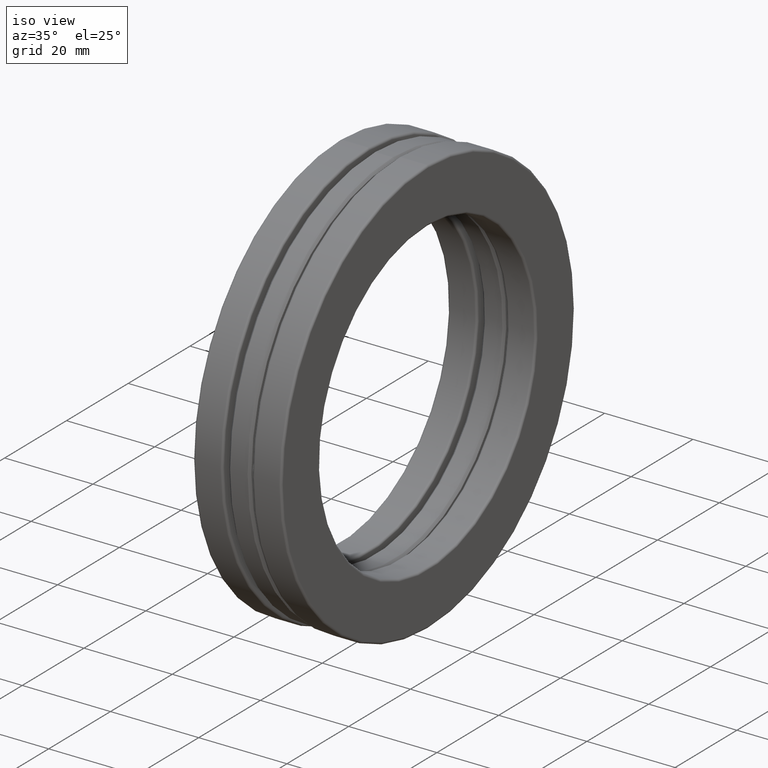
[diagram: clean part render]
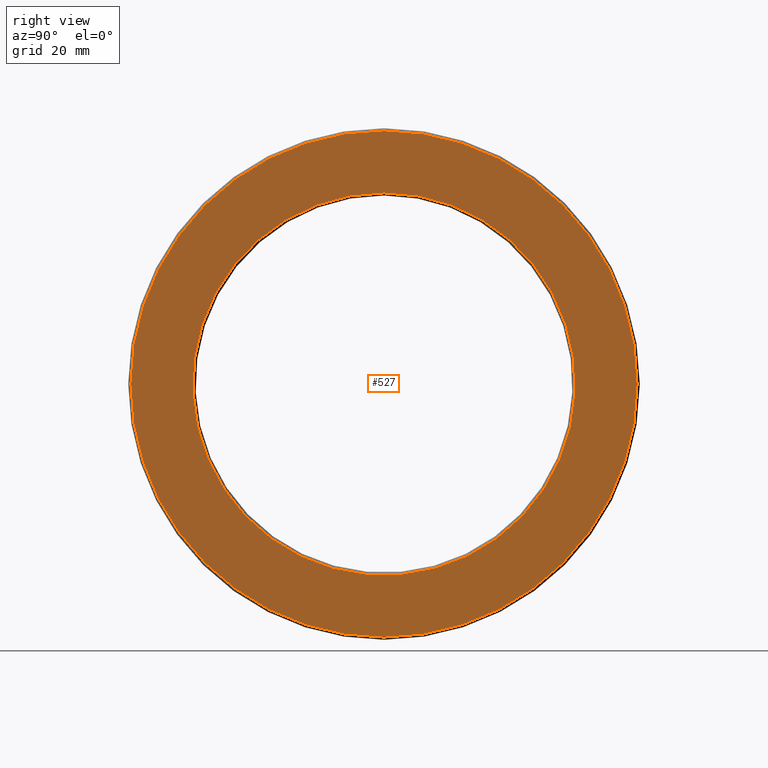
[diagram: tour spotlight — one face highlighted and labeled with its STEP entity id]
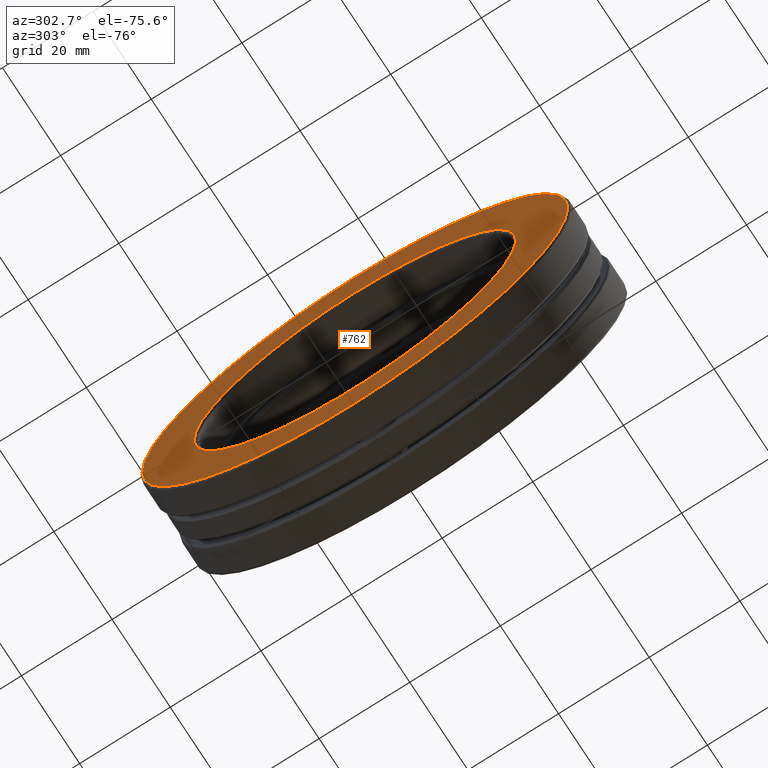
[diagram: tour spotlight — one face highlighted and labeled with its STEP entity id]
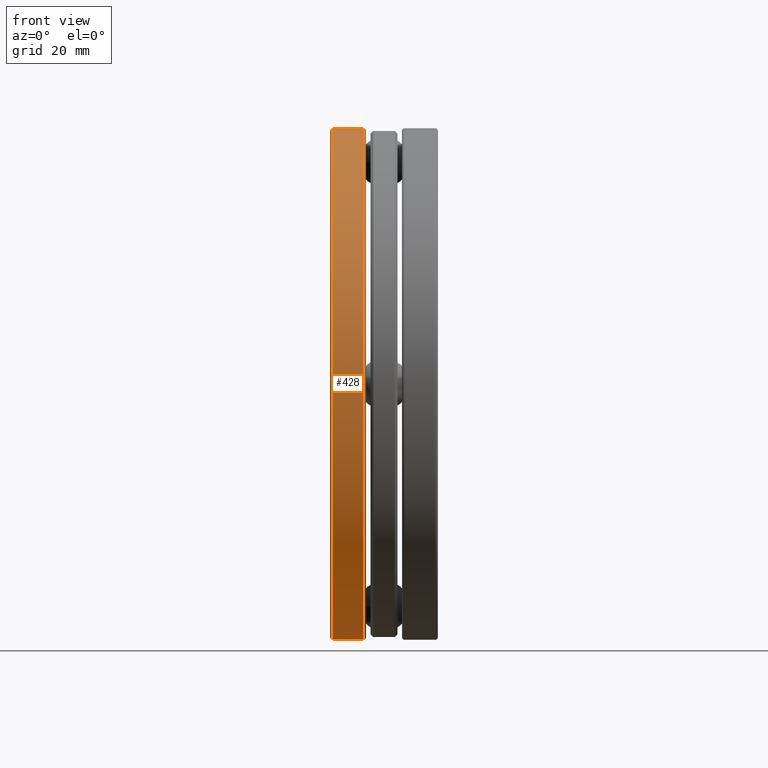
[diagram: tour spotlight — one face highlighted and labeled with its STEP entity id]
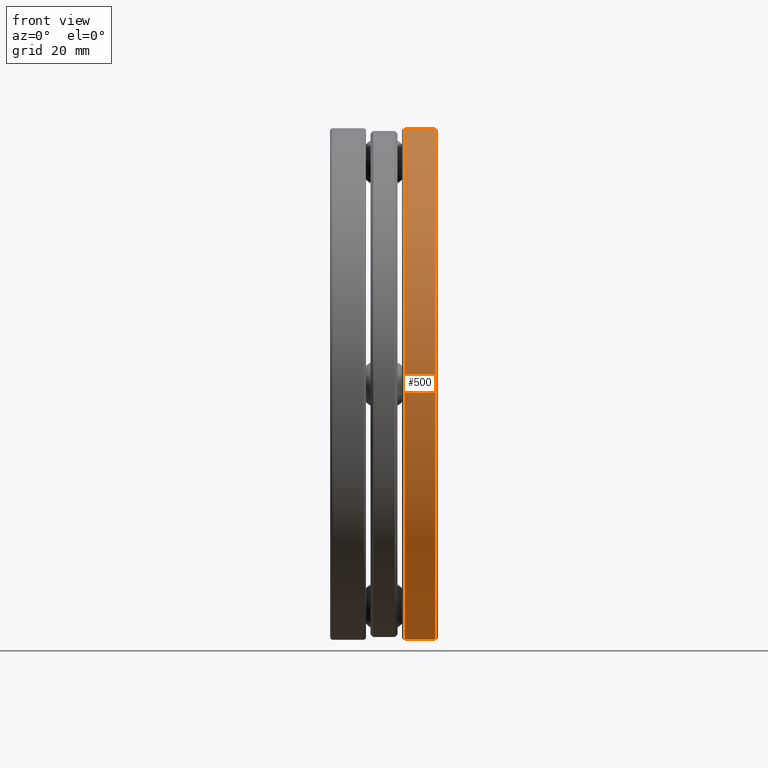
[diagram: tour spotlight — one face highlighted and labeled with its STEP entity id]
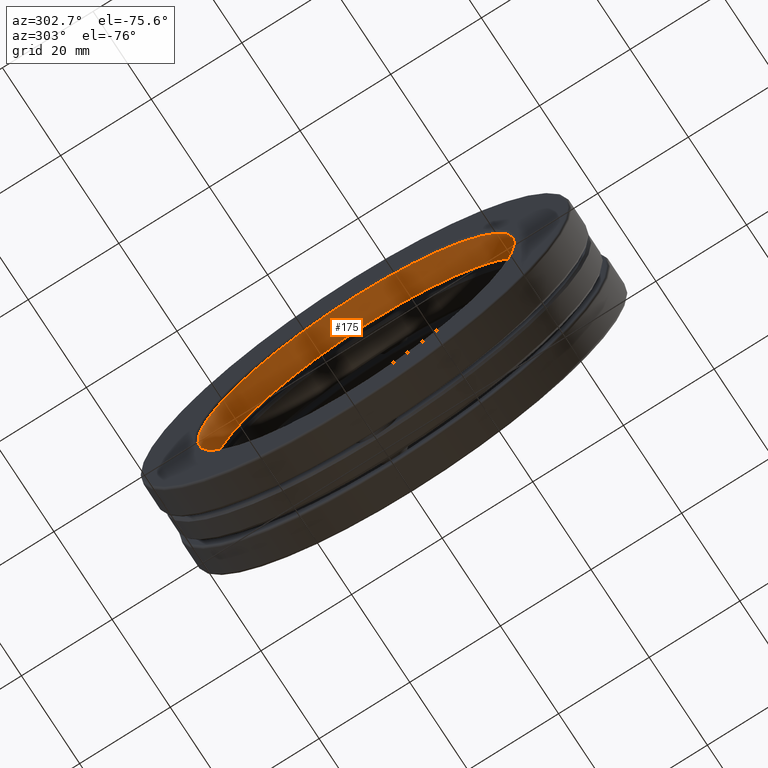
[diagram: tour spotlight — one face highlighted and labeled with its STEP entity id]
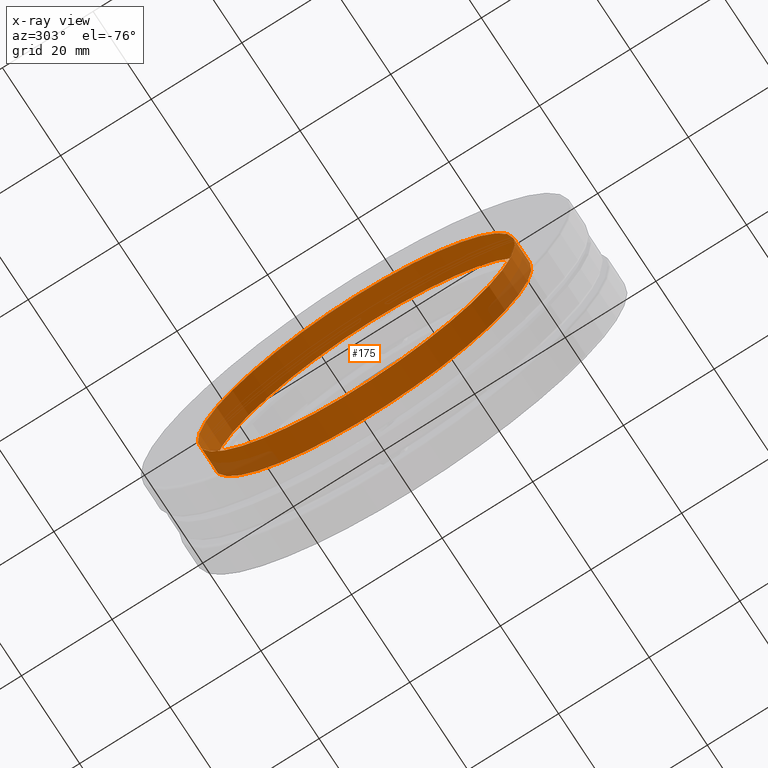
[diagram: x-ray of the same camera — body ghosted, this tour face saturated]
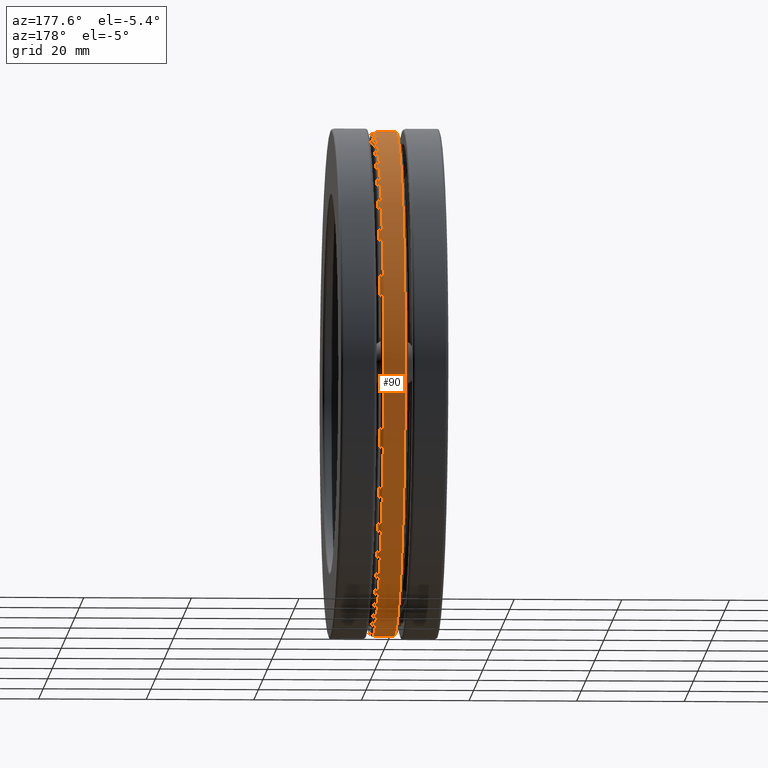
[diagram: tour spotlight — one face highlighted and labeled with its STEP entity id]
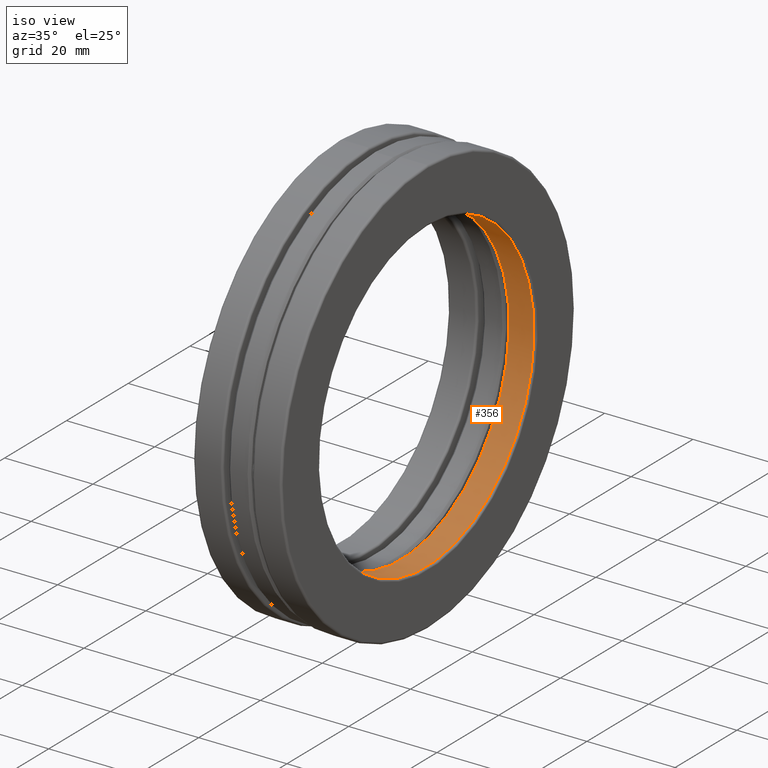
[diagram: tour spotlight — one face highlighted and labeled with its STEP entity id]
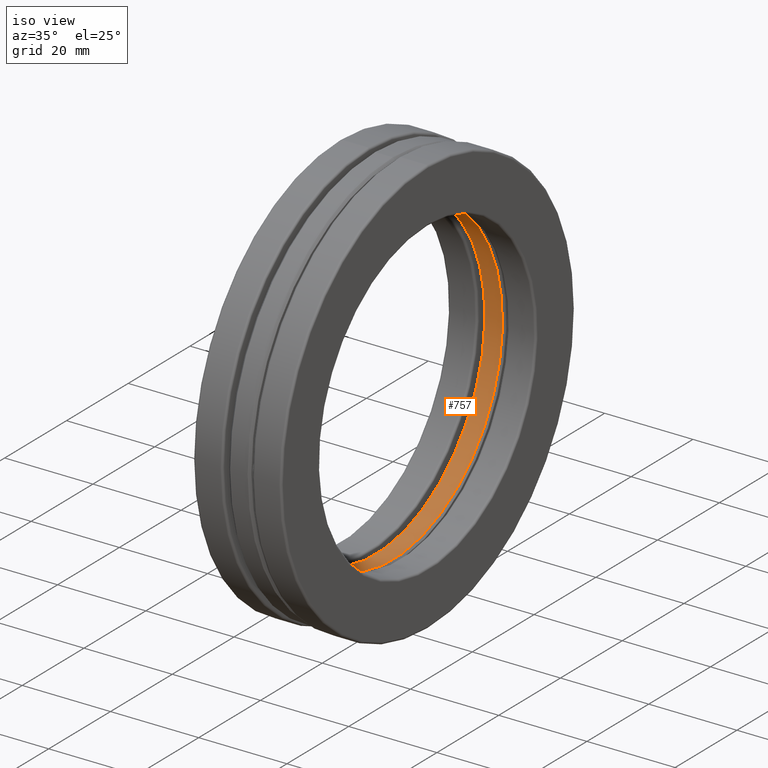
[diagram: tour spotlight — one face highlighted and labeled with its STEP entity id]
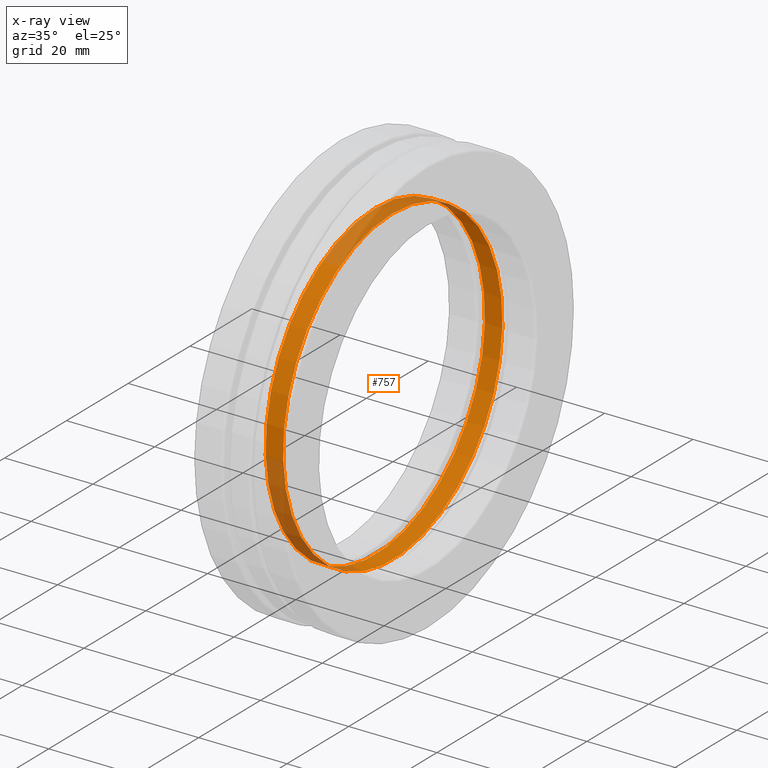
[diagram: x-ray of the same camera — body ghosted, this tour face saturated]
A machine part: a face-by-face anatomy tour. The part has 36 B-rep faces; the first image is the clean iso view, then the 8 largest visible faces are spotlighted one at a time (largest first), each with its STEP entity span.

Face 1 — right view, entity #527. In plain terms, the highlighted planar face has unit normal (1, 0, 0).
Definition (entity closure, byte-faithful):
#18 = VERTEX_POINT ( 'NONE', #251 ) ;
#20 = CIRCLE ( 'NONE', #494, 1.850000000000000300 ) ;
#97 = EDGE_CURVE ( 'NONE', #18, #18, #717, .T. ) ;
#127 = AXIS2_PLACEMENT_3D ( 'NONE', #570, #758, #376 ) ;
#166 = DIRECTION ( 'NONE',  ( 0.0000000000000000000, 0.0000000000000000000, -1.000000000000000000 ) ) ;
#221 = ORIENTED_EDGE ( 'NONE', *, *, #411, .F. ) ;
#251 = CARTESIAN_POINT ( 'NONE',  ( 0.3935000000000001300, 0.0000000000000000000, 1.397999999999999900 ) ) ;
#267 = DIRECTION ( 'NONE',  ( 0.0000000000000000000, 0.0000000000000000000, 1.000000000000000000 ) ) ;
#289 = ORIENTED_EDGE ( 'NONE', *, *, #97, .T. ) ;
#331 = DIRECTION ( 'NONE',  ( -1.000000000000000000, -0.0000000000000000000, -0.0000000000000000000 ) ) ;
#376 = DIRECTION ( 'NONE',  ( 0.0000000000000000000, 0.0000000000000000000, 1.000000000000000000 ) ) ;
#411 = EDGE_CURVE ( 'NONE', #657, #657, #20, .T. ) ;
#425 = DIRECTION ( 'NONE',  ( 1.000000000000000000, 0.0000000000000000000, 0.0000000000000000000 ) ) ;
#433 = PLANE ( 'NONE',  #788 ) ;
#468 = EDGE_LOOP ( 'NONE', ( #289 ) ) ;
#494 = AXIS2_PLACEMENT_3D ( 'NONE', #601, #331, #267 ) ;
#525 = FACE_BOUND ( 'NONE', #468, .T. ) ;
#527 = ADVANCED_FACE ( 'NONE', ( #525, #640 ), #433, .T. ) ;
#570 = CARTESIAN_POINT ( 'NONE',  ( 0.3935000000000001300, 0.0000000000000000000, 0.0000000000000000000 ) ) ;
#592 = CARTESIAN_POINT ( 'NONE',  ( 0.3934999999999999600, 0.0000000000000000000, 1.850000000000000300 ) ) ;
#601 = CARTESIAN_POINT ( 'NONE',  ( 0.3934999999999999600, 0.0000000000000000000, 0.0000000000000000000 ) ) ;
#640 = FACE_OUTER_BOUND ( 'NONE', #751, .T. ) ;
#657 = VERTEX_POINT ( 'NONE', #592 ) ;
#717 = CIRCLE ( 'NONE', #127, 1.397999999999999900 ) ;
#751 = EDGE_LOOP ( 'NONE', ( #221 ) ) ;
#758 = DIRECTION ( 'NONE',  ( -1.000000000000000000, -0.0000000000000000000, -0.0000000000000000000 ) ) ;
#788 = AXIS2_PLACEMENT_3D ( 'NONE', #809, #425, #166 ) ;
#809 = CARTESIAN_POINT ( 'NONE',  ( 0.3935000000000000700, 1.189139585737708400E-016, 0.0000000000000000000 ) ) ;

Face 2 — auxiliary view, entity #762. In plain terms, the highlighted planar face has unit normal (1, 0, 0).
Definition (entity closure, byte-faithful):
#12 = ORIENTED_EDGE ( 'NONE', *, *, #140, .F. ) ;
#76 = ORIENTED_EDGE ( 'NONE', *, *, #680, .T. ) ;
#102 = EDGE_LOOP ( 'NONE', ( #76 ) ) ;
#106 = DIRECTION ( 'NONE',  ( -1.000000000000000000, -0.0000000000000000000, -0.0000000000000000000 ) ) ;
#108 = VERTEX_POINT ( 'NONE', #128 ) ;
#121 = PLANE ( 'NONE',  #135 ) ;
#128 = CARTESIAN_POINT ( 'NONE',  ( -0.3935000000000000700, 0.0000000000000000000, 1.850000000000000300 ) ) ;
#135 = AXIS2_PLACEMENT_3D ( 'NONE', #638, #368, #579 ) ;
#140 = EDGE_CURVE ( 'NONE', #141, #141, #336, .T. ) ;
#141 = VERTEX_POINT ( 'NONE', #196 ) ;
#196 = CARTESIAN_POINT ( 'NONE',  ( -0.3934999999999999600, 0.0000000000000000000, 1.397999999999999700 ) ) ;
#210 = CIRCLE ( 'NONE', #403, 1.850000000000000300 ) ;
#217 = FACE_OUTER_BOUND ( 'NONE', #102, .T. ) ;
#302 = DIRECTION ( 'NONE',  ( 0.0000000000000000000, 0.0000000000000000000, 1.000000000000000000 ) ) ;
#336 = CIRCLE ( 'NONE', #586, 1.397999999999999700 ) ;
#366 = CARTESIAN_POINT ( 'NONE',  ( -0.3934999999999999600, 0.0000000000000000000, 0.0000000000000000000 ) ) ;
#368 = DIRECTION ( 'NONE',  ( 1.000000000000000000, 0.0000000000000000000, 0.0000000000000000000 ) ) ;
#382 = FACE_BOUND ( 'NONE', #791, .T. ) ;
#403 = AXIS2_PLACEMENT_3D ( 'NONE', #690, #695, #750 ) ;
#579 = DIRECTION ( 'NONE',  ( 0.0000000000000000000, 0.0000000000000000000, -1.000000000000000000 ) ) ;
#586 = AXIS2_PLACEMENT_3D ( 'NONE', #366, #106, #302 ) ;
#638 = CARTESIAN_POINT ( 'NONE',  ( -0.3935000000000000700, -5.945697928688527000E-017, 0.0000000000000000000 ) ) ;
#680 = EDGE_CURVE ( 'NONE', #108, #108, #210, .T. ) ;
#690 = CARTESIAN_POINT ( 'NONE',  ( -0.3935000000000000700, 0.0000000000000000000, 0.0000000000000000000 ) ) ;
#695 = DIRECTION ( 'NONE',  ( -1.000000000000000000, -0.0000000000000000000, -0.0000000000000000000 ) ) ;
#750 = DIRECTION ( 'NONE',  ( 0.0000000000000000000, 0.0000000000000000000, 1.000000000000000000 ) ) ;
#762 = ADVANCED_FACE ( 'NONE', ( #382, #217 ), #121, .F. ) ;
#791 = EDGE_LOOP ( 'NONE', ( #12 ) ) ;

Face 3 — front view, entity #428. In plain terms, the highlighted cylindrical surface (bore or boss wall) has radius 47.498 mm, axis along (-1, -0, -0).
Definition (entity closure, byte-faithful):
#19 = DIRECTION ( 'NONE',  ( -1.000000000000000000, -0.0000000000000000000, -0.0000000000000000000 ) ) ;
#32 = EDGE_LOOP ( 'NONE', ( #599 ) ) ;
#40 = DIRECTION ( 'NONE',  ( 0.0000000000000000000, 0.0000000000000000000, 1.000000000000000000 ) ) ;
#67 = EDGE_LOOP ( 'NONE', ( #740 ) ) ;
#104 = CARTESIAN_POINT ( 'NONE',  ( -0.1511692899999999600, 0.0000000000000000000, 0.0000000000000000000 ) ) ;
#120 = FACE_OUTER_BOUND ( 'NONE', #32, .T. ) ;
#181 = EDGE_CURVE ( 'NONE', #237, #237, #564, .T. ) ;
#184 = DIRECTION ( 'NONE',  ( -1.000000000000000000, -0.0000000000000000000, -0.0000000000000000000 ) ) ;
#201 = CARTESIAN_POINT ( 'NONE',  ( -0.1511692899999999600, 0.0000000000000000000, 1.870000000000000100 ) ) ;
#232 = DIRECTION ( 'NONE',  ( -1.000000000000000000, -0.0000000000000000000, -0.0000000000000000000 ) ) ;
#237 = VERTEX_POINT ( 'NONE', #394 ) ;
#307 = VERTEX_POINT ( 'NONE', #201 ) ;
#341 = CARTESIAN_POINT ( 'NONE',  ( 0.0000000000000000000, 0.0000000000000000000, 0.0000000000000000000 ) ) ;
#373 = FACE_OUTER_BOUND ( 'NONE', #67, .T. ) ;
#394 = CARTESIAN_POINT ( 'NONE',  ( -0.3735000000000000500, 0.0000000000000000000, 1.870000000000000100 ) ) ;
#404 = DIRECTION ( 'NONE',  ( 0.0000000000000000000, 0.0000000000000000000, 1.000000000000000000 ) ) ;
#428 = ADVANCED_FACE ( 'NONE', ( #120, #373 ), #785, .T. ) ;
#465 = CARTESIAN_POINT ( 'NONE',  ( -0.3735000000000000500, 0.0000000000000000000, 0.0000000000000000000 ) ) ;
#483 = AXIS2_PLACEMENT_3D ( 'NONE', #465, #184, #585 ) ;
#490 = AXIS2_PLACEMENT_3D ( 'NONE', #341, #19, #404 ) ;
#564 = CIRCLE ( 'NONE', #483, 1.870000000000000100 ) ;
#569 = EDGE_CURVE ( 'NONE', #307, #307, #694, .T. ) ;
#585 = DIRECTION ( 'NONE',  ( 0.0000000000000000000, 0.0000000000000000000, 1.000000000000000000 ) ) ;
#599 = ORIENTED_EDGE ( 'NONE', *, *, #181, .F. ) ;
#624 = AXIS2_PLACEMENT_3D ( 'NONE', #104, #232, #40 ) ;
#694 = CIRCLE ( 'NONE', #624, 1.870000000000000100 ) ;
#740 = ORIENTED_EDGE ( 'NONE', *, *, #569, .T. ) ;
#785 = CYLINDRICAL_SURFACE ( 'NONE', #490, 1.870000000000000100 ) ;

Face 4 — front view, entity #500. In plain terms, the highlighted cylindrical surface (bore or boss wall) has radius 47.498 mm, axis along (-1, -0, -0).
Definition (entity closure, byte-faithful):
#8 = CYLINDRICAL_SURFACE ( 'NONE', #291, 1.870000000000000300 ) ;
#16 = CARTESIAN_POINT ( 'NONE',  ( 0.3735000000000006600, 0.0000000000000000000, 0.0000000000000000000 ) ) ;
#44 = VERTEX_POINT ( 'NONE', #69 ) ;
#69 = CARTESIAN_POINT ( 'NONE',  ( 0.1511692900000004800, 0.0000000000000000000, 1.870000000000000300 ) ) ;
#92 = EDGE_CURVE ( 'NONE', #44, #44, #730, .T. ) ;
#110 = DIRECTION ( 'NONE',  ( 0.0000000000000000000, 0.0000000000000000000, 1.000000000000000000 ) ) ;
#132 = CARTESIAN_POINT ( 'NONE',  ( 0.3735000000000006600, 0.0000000000000000000, 1.870000000000000300 ) ) ;
#192 = DIRECTION ( 'NONE',  ( 0.0000000000000000000, 0.0000000000000000000, 1.000000000000000000 ) ) ;
#213 = EDGE_CURVE ( 'NONE', #271, #271, #584, .T. ) ;
#271 = VERTEX_POINT ( 'NONE', #132 ) ;
#291 = AXIS2_PLACEMENT_3D ( 'NONE', #561, #562, #629 ) ;
#292 = AXIS2_PLACEMENT_3D ( 'NONE', #574, #686, #110 ) ;
#325 = EDGE_LOOP ( 'NONE', ( #643 ) ) ;
#469 = AXIS2_PLACEMENT_3D ( 'NONE', #16, #645, #192 ) ;
#500 = ADVANCED_FACE ( 'NONE', ( #764, #803 ), #8, .T. ) ;
#561 = CARTESIAN_POINT ( 'NONE',  ( 0.0000000000000000000, 0.0000000000000000000, 0.0000000000000000000 ) ) ;
#562 = DIRECTION ( 'NONE',  ( -1.000000000000000000, -0.0000000000000000000, -0.0000000000000000000 ) ) ;
#574 = CARTESIAN_POINT ( 'NONE',  ( 0.1511692900000004800, 0.0000000000000000000, 0.0000000000000000000 ) ) ;
#578 = EDGE_LOOP ( 'NONE', ( #626 ) ) ;
#584 = CIRCLE ( 'NONE', #469, 1.870000000000000300 ) ;
#626 = ORIENTED_EDGE ( 'NONE', *, *, #92, .F. ) ;
#629 = DIRECTION ( 'NONE',  ( 0.0000000000000000000, 0.0000000000000000000, 1.000000000000000000 ) ) ;
#643 = ORIENTED_EDGE ( 'NONE', *, *, #213, .T. ) ;
#645 = DIRECTION ( 'NONE',  ( -1.000000000000000000, -0.0000000000000000000, -0.0000000000000000000 ) ) ;
#686 = DIRECTION ( 'NONE',  ( -1.000000000000000000, -0.0000000000000000000, -0.0000000000000000000 ) ) ;
#730 = CIRCLE ( 'NONE', #292, 1.870000000000000300 ) ;
#764 = FACE_OUTER_BOUND ( 'NONE', #578, .T. ) ;
#803 = FACE_OUTER_BOUND ( 'NONE', #325, .T. ) ;

Face 5 — auxiliary view, entity #175. An x-ray twin of the same camera follows (body ghosted, this face saturated) — the face is partly hidden behind the body. In plain terms, the highlighted cylindrical surface (bore or boss wall) has radius 35.0012 mm, axis along (-1, -0, -0).
Definition (entity closure, byte-faithful):
#27 = CIRCLE ( 'NONE', #33, 1.377999999999999900 ) ;
#33 = AXIS2_PLACEMENT_3D ( 'NONE', #268, #470, #343 ) ;
#39 = EDGE_LOOP ( 'NONE', ( #164 ) ) ;
#65 = FACE_OUTER_BOUND ( 'NONE', #39, .T. ) ;
#86 = EDGE_CURVE ( 'NONE', #262, #262, #795, .T. ) ;
#113 = DIRECTION ( 'NONE',  ( -1.000000000000000000, -0.0000000000000000000, -0.0000000000000000000 ) ) ;
#164 = ORIENTED_EDGE ( 'NONE', *, *, #345, .T. ) ;
#175 = ADVANCED_FACE ( 'NONE', ( #65, #805 ), #397, .F. ) ;
#212 = EDGE_LOOP ( 'NONE', ( #326 ) ) ;
#262 = VERTEX_POINT ( 'NONE', #652 ) ;
#268 = CARTESIAN_POINT ( 'NONE',  ( -0.3734999999999999400, 0.0000000000000000000, 0.0000000000000000000 ) ) ;
#295 = CARTESIAN_POINT ( 'NONE',  ( -0.1511692899999998200, 0.0000000000000000000, 0.0000000000000000000 ) ) ;
#298 = DIRECTION ( 'NONE',  ( -1.000000000000000000, -0.0000000000000000000, -0.0000000000000000000 ) ) ;
#311 = DIRECTION ( 'NONE',  ( 0.0000000000000000000, 0.0000000000000000000, 1.000000000000000000 ) ) ;
#326 = ORIENTED_EDGE ( 'NONE', *, *, #86, .F. ) ;
#343 = DIRECTION ( 'NONE',  ( 0.0000000000000000000, 0.0000000000000000000, 1.000000000000000000 ) ) ;
#345 = EDGE_CURVE ( 'NONE', #512, #512, #27, .T. ) ;
#397 = CYLINDRICAL_SURFACE ( 'NONE', #664, 1.377999999999999900 ) ;
#470 = DIRECTION ( 'NONE',  ( -1.000000000000000000, -0.0000000000000000000, -0.0000000000000000000 ) ) ;
#512 = VERTEX_POINT ( 'NONE', #528 ) ;
#528 = CARTESIAN_POINT ( 'NONE',  ( -0.3734999999999999400, 0.0000000000000000000, 1.377999999999999900 ) ) ;
#593 = DIRECTION ( 'NONE',  ( 0.0000000000000000000, 0.0000000000000000000, 1.000000000000000000 ) ) ;
#652 = CARTESIAN_POINT ( 'NONE',  ( -0.1511692899999998200, 0.0000000000000000000, 1.377999999999999900 ) ) ;
#664 = AXIS2_PLACEMENT_3D ( 'NONE', #817, #113, #593 ) ;
#729 = AXIS2_PLACEMENT_3D ( 'NONE', #295, #298, #311 ) ;
#795 = CIRCLE ( 'NONE', #729, 1.377999999999999900 ) ;
#805 = FACE_OUTER_BOUND ( 'NONE', #212, .T. ) ;
#817 = CARTESIAN_POINT ( 'NONE',  ( 0.0000000000000000000, 0.0000000000000000000, 0.0000000000000000000 ) ) ;

Face 6 — auxiliary view, entity #90. In plain terms, the highlighted cylindrical surface (bore or boss wall) has radius 46.99 mm, axis along (-1, -0, -0).
Definition (entity closure, byte-faithful):
#7 = EDGE_CURVE ( 'NONE', #555, #555, #88, .T. ) ;
#48 = DIRECTION ( 'NONE',  ( -1.000000000000000000, -0.0000000000000000000, -0.0000000000000000000 ) ) ;
#57 = CARTESIAN_POINT ( 'NONE',  ( 0.0000000000000000000, 0.0000000000000000000, 0.0000000000000000000 ) ) ;
#58 = AXIS2_PLACEMENT_3D ( 'NONE', #259, #649, #702 ) ;
#88 = CIRCLE ( 'NONE', #793, 1.849999999999999600 ) ;
#90 = ADVANCED_FACE ( 'NONE', ( #767, #607 ), #386, .T. ) ;
#156 = DIRECTION ( 'NONE',  ( 0.0000000000000000000, 0.0000000000000000000, 1.000000000000000000 ) ) ;
#163 = EDGE_LOOP ( 'NONE', ( #618 ) ) ;
#173 = ORIENTED_EDGE ( 'NONE', *, *, #274, .T. ) ;
#225 = VERTEX_POINT ( 'NONE', #716 ) ;
#241 = CARTESIAN_POINT ( 'NONE',  ( -0.07837499999999998600, 0.0000000000000000000, 1.849999999999999600 ) ) ;
#259 = CARTESIAN_POINT ( 'NONE',  ( 0.07837499999999998600, 0.0000000000000000000, 0.0000000000000000000 ) ) ;
#274 = EDGE_CURVE ( 'NONE', #225, #225, #666, .T. ) ;
#386 = CYLINDRICAL_SURFACE ( 'NONE', #549, 1.849999999999999600 ) ;
#431 = CARTESIAN_POINT ( 'NONE',  ( -0.07837499999999998600, 0.0000000000000000000, 0.0000000000000000000 ) ) ;
#511 = DIRECTION ( 'NONE',  ( -1.000000000000000000, -0.0000000000000000000, -0.0000000000000000000 ) ) ;
#549 = AXIS2_PLACEMENT_3D ( 'NONE', #57, #511, #636 ) ;
#555 = VERTEX_POINT ( 'NONE', #241 ) ;
#607 = FACE_OUTER_BOUND ( 'NONE', #163, .T. ) ;
#618 = ORIENTED_EDGE ( 'NONE', *, *, #7, .F. ) ;
#636 = DIRECTION ( 'NONE',  ( 0.0000000000000000000, 0.0000000000000000000, 1.000000000000000000 ) ) ;
#649 = DIRECTION ( 'NONE',  ( -1.000000000000000000, -0.0000000000000000000, -0.0000000000000000000 ) ) ;
#666 = CIRCLE ( 'NONE', #58, 1.849999999999999600 ) ;
#667 = EDGE_LOOP ( 'NONE', ( #173 ) ) ;
#702 = DIRECTION ( 'NONE',  ( 0.0000000000000000000, 0.0000000000000000000, 1.000000000000000000 ) ) ;
#716 = CARTESIAN_POINT ( 'NONE',  ( 0.07837499999999998600, 0.0000000000000000000, 1.849999999999999600 ) ) ;
#767 = FACE_OUTER_BOUND ( 'NONE', #667, .T. ) ;
#793 = AXIS2_PLACEMENT_3D ( 'NONE', #431, #48, #156 ) ;

Face 7 — iso view, entity #356. In plain terms, the highlighted cylindrical surface (bore or boss wall) has radius 35.0012 mm, axis along (-1, -0, -0).
Definition (entity closure, byte-faithful):
#31 = EDGE_LOOP ( 'NONE', ( #47 ) ) ;
#47 = ORIENTED_EDGE ( 'NONE', *, *, #282, .F. ) ;
#61 = EDGE_CURVE ( 'NONE', #621, #621, #400, .T. ) ;
#116 = DIRECTION ( 'NONE',  ( -1.000000000000000000, -0.0000000000000000000, -0.0000000000000000000 ) ) ;
#129 = CYLINDRICAL_SURFACE ( 'NONE', #671, 1.377999999999999900 ) ;
#183 = CARTESIAN_POINT ( 'NONE',  ( 0.1511692900000005700, 0.0000000000000000000, 1.377999999999999900 ) ) ;
#243 = ORIENTED_EDGE ( 'NONE', *, *, #61, .T. ) ;
#282 = EDGE_CURVE ( 'NONE', #451, #451, #350, .T. ) ;
#321 = DIRECTION ( 'NONE',  ( -1.000000000000000000, -0.0000000000000000000, -0.0000000000000000000 ) ) ;
#323 = CARTESIAN_POINT ( 'NONE',  ( 0.3735000000000007200, 0.0000000000000000000, 1.377999999999999900 ) ) ;
#340 = EDGE_LOOP ( 'NONE', ( #243 ) ) ;
#350 = CIRCLE ( 'NONE', #508, 1.377999999999999900 ) ;
#356 = ADVANCED_FACE ( 'NONE', ( #705, #453 ), #129, .F. ) ;
#396 = CARTESIAN_POINT ( 'NONE',  ( 0.3735000000000007200, 0.0000000000000000000, 0.0000000000000000000 ) ) ;
#400 = CIRCLE ( 'NONE', #706, 1.377999999999999900 ) ;
#447 = DIRECTION ( 'NONE',  ( 0.0000000000000000000, 0.0000000000000000000, 1.000000000000000000 ) ) ;
#451 = VERTEX_POINT ( 'NONE', #323 ) ;
#453 = FACE_OUTER_BOUND ( 'NONE', #31, .T. ) ;
#508 = AXIS2_PLACEMENT_3D ( 'NONE', #396, #321, #530 ) ;
#526 = DIRECTION ( 'NONE',  ( -1.000000000000000000, -0.0000000000000000000, -0.0000000000000000000 ) ) ;
#530 = DIRECTION ( 'NONE',  ( 0.0000000000000000000, 0.0000000000000000000, 1.000000000000000000 ) ) ;
#621 = VERTEX_POINT ( 'NONE', #183 ) ;
#671 = AXIS2_PLACEMENT_3D ( 'NONE', #712, #526, #724 ) ;
#705 = FACE_OUTER_BOUND ( 'NONE', #340, .T. ) ;
#706 = AXIS2_PLACEMENT_3D ( 'NONE', #761, #116, #447 ) ;
#712 = CARTESIAN_POINT ( 'NONE',  ( 0.0000000000000000000, 0.0000000000000000000, 0.0000000000000000000 ) ) ;
#724 = DIRECTION ( 'NONE',  ( 0.0000000000000000000, 0.0000000000000000000, 1.000000000000000000 ) ) ;
#761 = CARTESIAN_POINT ( 'NONE',  ( 0.1511692900000005700, 0.0000000000000000000, 0.0000000000000000000 ) ) ;

Face 8 — iso view, entity #757. An x-ray twin of the same camera follows (body ghosted, this face saturated) — the face is partly hidden behind the body. In plain terms, the highlighted cylindrical surface (bore or boss wall) has radius 35.5092 mm, axis along (-1, -0, -0).
Definition (entity closure, byte-faithful):
#54 = CYLINDRICAL_SURFACE ( 'NONE', #523, 1.397999999999999900 ) ;
#83 = AXIS2_PLACEMENT_3D ( 'NONE', #782, #596, #480 ) ;
#109 = DIRECTION ( 'NONE',  ( 0.0000000000000000000, 0.0000000000000000000, 1.000000000000000000 ) ) ;
#138 = FACE_OUTER_BOUND ( 'NONE', #377, .T. ) ;
#176 = DIRECTION ( 'NONE',  ( -1.000000000000000000, -0.0000000000000000000, -0.0000000000000000000 ) ) ;
#179 = CIRCLE ( 'NONE', #83, 1.397999999999999900 ) ;
#198 = CARTESIAN_POINT ( 'NONE',  ( -0.07837499999999998600, 0.0000000000000000000, 1.397999999999999900 ) ) ;
#233 = AXIS2_PLACEMENT_3D ( 'NONE', #820, #176, #445 ) ;
#362 = ORIENTED_EDGE ( 'NONE', *, *, #391, .F. ) ;
#377 = EDGE_LOOP ( 'NONE', ( #362 ) ) ;
#391 = EDGE_CURVE ( 'NONE', #414, #414, #179, .T. ) ;
#393 = CARTESIAN_POINT ( 'NONE',  ( 0.07837500000000002800, 0.0000000000000000000, 1.397999999999999900 ) ) ;
#395 = FACE_OUTER_BOUND ( 'NONE', #544, .T. ) ;
#414 = VERTEX_POINT ( 'NONE', #393 ) ;
#445 = DIRECTION ( 'NONE',  ( 0.0000000000000000000, 0.0000000000000000000, 1.000000000000000000 ) ) ;
#448 = CIRCLE ( 'NONE', #233, 1.397999999999999900 ) ;
#480 = DIRECTION ( 'NONE',  ( 0.0000000000000000000, 0.0000000000000000000, 1.000000000000000000 ) ) ;
#523 = AXIS2_PLACEMENT_3D ( 'NONE', #699, #822, #109 ) ;
#544 = EDGE_LOOP ( 'NONE', ( #616 ) ) ;
#596 = DIRECTION ( 'NONE',  ( -1.000000000000000000, -0.0000000000000000000, -0.0000000000000000000 ) ) ;
#616 = ORIENTED_EDGE ( 'NONE', *, *, #799, .T. ) ;
#620 = VERTEX_POINT ( 'NONE', #198 ) ;
#699 = CARTESIAN_POINT ( 'NONE',  ( 0.0000000000000000000, 0.0000000000000000000, 0.0000000000000000000 ) ) ;
#757 = ADVANCED_FACE ( 'NONE', ( #138, #395 ), #54, .F. ) ;
#782 = CARTESIAN_POINT ( 'NONE',  ( 0.07837500000000002800, 0.0000000000000000000, 0.0000000000000000000 ) ) ;
#799 = EDGE_CURVE ( 'NONE', #620, #620, #448, .T. ) ;
#820 = CARTESIAN_POINT ( 'NONE',  ( -0.07837499999999998600, 0.0000000000000000000, 0.0000000000000000000 ) ) ;
#822 = DIRECTION ( 'NONE',  ( -1.000000000000000000, -0.0000000000000000000, -0.0000000000000000000 ) ) ;